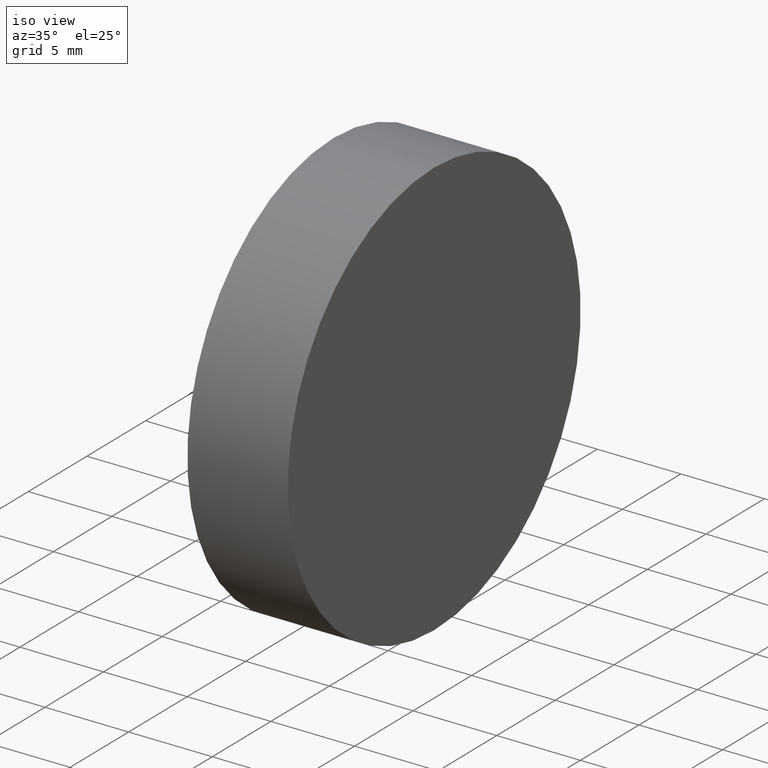
[diagram: clean part render]
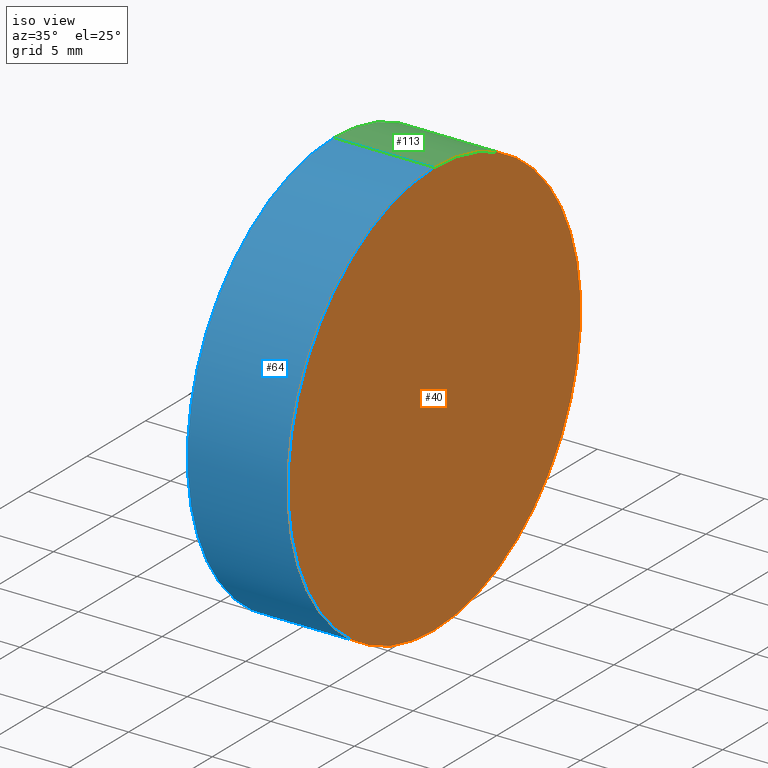
[diagram: same view with three faces highlighted in distinct colors, each labeled with its STEP entity id]
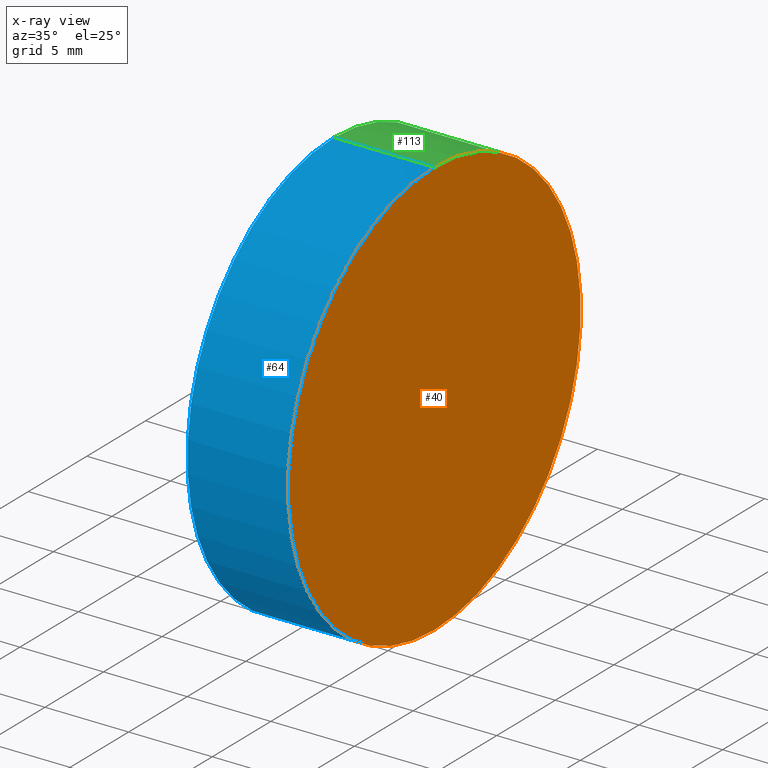
[diagram: x-ray of the same camera — body ghosted, the three highlighted faces saturated]
A machine part, iso view with three faces highlighted in distinct colors.
The next image is the same camera in x-ray (body ghosted, the three faces saturated) — at least one of them is partly hidden behind the body in this view.
Their STEP definitions:

[orange] entity #40 — the highlighted planar face has unit normal (-1, 0, -0).
#10 = AXIS2_PLACEMENT_3D ( 'NONE', #11, #46, #121 ) ;
#11 = CARTESIAN_POINT ( 'NONE',  ( 266.1571404925609800, 77.29317934901541800, 0.0000000000000000000 ) ) ;
#16 = CARTESIAN_POINT ( 'NONE',  ( 266.1571404925609800, 77.29317934901541800, -12.49999999999998400 ) ) ;
#17 = CIRCLE ( 'NONE', #55, 12.49999999999998400 ) ;
#20 = VERTEX_POINT ( 'NONE', #77 ) ;
#22 = EDGE_CURVE ( 'NONE', #124, #20, #131, .T. ) ;
#34 = CARTESIAN_POINT ( 'NONE',  ( 266.1571404925609800, 77.29317934901541800, 0.0000000000000000000 ) ) ;
#40 = ADVANCED_FACE ( 'NONE', ( #74 ), #135, .F. ) ;
#46 = DIRECTION ( 'NONE',  ( -1.000000000000000000, -0.0000000000000000000, -0.0000000000000000000 ) ) ;
#47 = DIRECTION ( 'NONE',  ( -1.000000000000000000, 0.0000000000000000000, -0.0000000000000000000 ) ) ;
#54 = ORIENTED_EDGE ( 'NONE', *, *, #75, .F. ) ;
#55 = AXIS2_PLACEMENT_3D ( 'NONE', #34, #59, #114 ) ;
#59 = DIRECTION ( 'NONE',  ( -1.000000000000000000, -0.0000000000000000000, -0.0000000000000000000 ) ) ;
#70 = DIRECTION ( 'NONE',  ( -0.0000000000000000000, 0.0000000000000000000, 1.000000000000000000 ) ) ;
#74 = FACE_OUTER_BOUND ( 'NONE', #102, .T. ) ;
#75 = EDGE_CURVE ( 'NONE', #20, #124, #17, .T. ) ;
#77 = CARTESIAN_POINT ( 'NONE',  ( 266.1571404925609800, 77.29317934901541800, 12.49999999999998400 ) ) ;
#102 = EDGE_LOOP ( 'NONE', ( #54, #139 ) ) ;
#110 = CARTESIAN_POINT ( 'NONE',  ( 266.1571404925609800, 77.29317934901540400, 0.0000000000000000000 ) ) ;
#114 = DIRECTION ( 'NONE',  ( 0.0000000000000000000, 0.0000000000000000000, 1.000000000000000000 ) ) ;
#121 = DIRECTION ( 'NONE',  ( 0.0000000000000000000, 0.0000000000000000000, 1.000000000000000000 ) ) ;
#122 = AXIS2_PLACEMENT_3D ( 'NONE', #110, #47, #70 ) ;
#124 = VERTEX_POINT ( 'NONE', #16 ) ;
#131 = CIRCLE ( 'NONE', #10, 12.49999999999998400 ) ;
#135 = PLANE ( 'NONE',  #122 ) ;
#139 = ORIENTED_EDGE ( 'NONE', *, *, #22, .F. ) ;

[blue] entity #64 — the highlighted cylindrical surface (partial cylindrical patch) has radius 12.5 mm, axis along (-1, -0, -0).
#3 = ORIENTED_EDGE ( 'NONE', *, *, #88, .F. ) ;
#5 = CARTESIAN_POINT ( 'NONE',  ( 254.0008019926160300, 77.29317934901541800, 12.49999999999998400 ) ) ;
#10 = AXIS2_PLACEMENT_3D ( 'NONE', #11, #46, #121 ) ;
#11 = CARTESIAN_POINT ( 'NONE',  ( 266.1571404925609800, 77.29317934901541800, 0.0000000000000000000 ) ) ;
#12 = VECTOR ( 'NONE', #97, 1000.000000000000000 ) ;
#16 = CARTESIAN_POINT ( 'NONE',  ( 266.1571404925609800, 77.29317934901541800, -12.49999999999998400 ) ) ;
#20 = VERTEX_POINT ( 'NONE', #77 ) ;
#21 = DIRECTION ( 'NONE',  ( 0.0000000000000000000, 0.0000000000000000000, 1.000000000000000000 ) ) ;
#22 = EDGE_CURVE ( 'NONE', #124, #20, #131, .T. ) ;
#26 = CARTESIAN_POINT ( 'NONE',  ( 254.0008019926160300, 77.29317934901541800, -12.49999999999998400 ) ) ;
#37 = VERTEX_POINT ( 'NONE', #95 ) ;
#42 = LINE ( 'NONE', #5, #92 ) ;
#44 = ORIENTED_EDGE ( 'NONE', *, *, #45, .F. ) ;
#45 = EDGE_CURVE ( 'NONE', #37, #52, #63, .T. ) ;
#46 = DIRECTION ( 'NONE',  ( -1.000000000000000000, -0.0000000000000000000, -0.0000000000000000000 ) ) ;
#48 = FACE_OUTER_BOUND ( 'NONE', #68, .T. ) ;
#50 = AXIS2_PLACEMENT_3D ( 'NONE', #56, #86, #21 ) ;
#52 = VERTEX_POINT ( 'NONE', #78 ) ;
#56 = CARTESIAN_POINT ( 'NONE',  ( 260.1571404925609800, 77.29317934901541800, 0.0000000000000000000 ) ) ;
#57 = LINE ( 'NONE', #26, #12 ) ;
#63 = CIRCLE ( 'NONE', #50, 12.49999999999998400 ) ;
#64 = ADVANCED_FACE ( 'NONE', ( #48 ), #79, .T. ) ;
#68 = EDGE_LOOP ( 'NONE', ( #3, #94, #91, #44 ) ) ;
#72 = AXIS2_PLACEMENT_3D ( 'NONE', #111, #123, #133 ) ;
#77 = CARTESIAN_POINT ( 'NONE',  ( 266.1571404925609800, 77.29317934901541800, 12.49999999999998400 ) ) ;
#78 = CARTESIAN_POINT ( 'NONE',  ( 260.1571404925609800, 77.29317934901541800, 12.49999999999998400 ) ) ;
#79 = CYLINDRICAL_SURFACE ( 'NONE', #72, 12.49999999999998400 ) ;
#84 = EDGE_CURVE ( 'NONE', #20, #52, #42, .T. ) ;
#86 = DIRECTION ( 'NONE',  ( -1.000000000000000000, -0.0000000000000000000, -0.0000000000000000000 ) ) ;
#88 = EDGE_CURVE ( 'NONE', #124, #37, #57, .T. ) ;
#91 = ORIENTED_EDGE ( 'NONE', *, *, #84, .T. ) ;
#92 = VECTOR ( 'NONE', #100, 1000.000000000000000 ) ;
#94 = ORIENTED_EDGE ( 'NONE', *, *, #22, .T. ) ;
#95 = CARTESIAN_POINT ( 'NONE',  ( 260.1571404925609800, 77.29317934901541800, -12.49999999999998400 ) ) ;
#97 = DIRECTION ( 'NONE',  ( -1.000000000000000000, -0.0000000000000000000, -0.0000000000000000000 ) ) ;
#100 = DIRECTION ( 'NONE',  ( -1.000000000000000000, -0.0000000000000000000, -0.0000000000000000000 ) ) ;
#111 = CARTESIAN_POINT ( 'NONE',  ( 254.0008019926160300, 77.29317934901541800, 0.0000000000000000000 ) ) ;
#121 = DIRECTION ( 'NONE',  ( 0.0000000000000000000, 0.0000000000000000000, 1.000000000000000000 ) ) ;
#123 = DIRECTION ( 'NONE',  ( -1.000000000000000000, -0.0000000000000000000, -0.0000000000000000000 ) ) ;
#124 = VERTEX_POINT ( 'NONE', #16 ) ;
#131 = CIRCLE ( 'NONE', #10, 12.49999999999998400 ) ;
#133 = DIRECTION ( 'NONE',  ( 0.0000000000000000000, 0.0000000000000000000, 1.000000000000000000 ) ) ;

[green] entity #113 — the highlighted cylindrical surface (partial cylindrical patch) has radius 12.5 mm, axis along (-1, -0, -0).
#5 = CARTESIAN_POINT ( 'NONE',  ( 254.0008019926160300, 77.29317934901541800, 12.49999999999998400 ) ) ;
#8 = FACE_OUTER_BOUND ( 'NONE', #67, .T. ) ;
#9 = CIRCLE ( 'NONE', #25, 12.49999999999998400 ) ;
#12 = VECTOR ( 'NONE', #97, 1000.000000000000000 ) ;
#14 = DIRECTION ( 'NONE',  ( -1.000000000000000000, -0.0000000000000000000, -0.0000000000000000000 ) ) ;
#16 = CARTESIAN_POINT ( 'NONE',  ( 266.1571404925609800, 77.29317934901541800, -12.49999999999998400 ) ) ;
#17 = CIRCLE ( 'NONE', #55, 12.49999999999998400 ) ;
#20 = VERTEX_POINT ( 'NONE', #77 ) ;
#23 = ORIENTED_EDGE ( 'NONE', *, *, #75, .T. ) ;
#25 = AXIS2_PLACEMENT_3D ( 'NONE', #71, #96, #33 ) ;
#26 = CARTESIAN_POINT ( 'NONE',  ( 254.0008019926160300, 77.29317934901541800, -12.49999999999998400 ) ) ;
#33 = DIRECTION ( 'NONE',  ( 0.0000000000000000000, 0.0000000000000000000, 1.000000000000000000 ) ) ;
#34 = CARTESIAN_POINT ( 'NONE',  ( 266.1571404925609800, 77.29317934901541800, 0.0000000000000000000 ) ) ;
#37 = VERTEX_POINT ( 'NONE', #95 ) ;
#38 = AXIS2_PLACEMENT_3D ( 'NONE', #115, #14, #49 ) ;
#41 = EDGE_CURVE ( 'NONE', #52, #37, #9, .T. ) ;
#42 = LINE ( 'NONE', #5, #92 ) ;
#49 = DIRECTION ( 'NONE',  ( 0.0000000000000000000, 0.0000000000000000000, 1.000000000000000000 ) ) ;
#52 = VERTEX_POINT ( 'NONE', #78 ) ;
#55 = AXIS2_PLACEMENT_3D ( 'NONE', #34, #59, #114 ) ;
#57 = LINE ( 'NONE', #26, #12 ) ;
#59 = DIRECTION ( 'NONE',  ( -1.000000000000000000, -0.0000000000000000000, -0.0000000000000000000 ) ) ;
#67 = EDGE_LOOP ( 'NONE', ( #23, #126, #132, #129 ) ) ;
#71 = CARTESIAN_POINT ( 'NONE',  ( 260.1571404925609800, 77.29317934901541800, 0.0000000000000000000 ) ) ;
#75 = EDGE_CURVE ( 'NONE', #20, #124, #17, .T. ) ;
#77 = CARTESIAN_POINT ( 'NONE',  ( 266.1571404925609800, 77.29317934901541800, 12.49999999999998400 ) ) ;
#78 = CARTESIAN_POINT ( 'NONE',  ( 260.1571404925609800, 77.29317934901541800, 12.49999999999998400 ) ) ;
#84 = EDGE_CURVE ( 'NONE', #20, #52, #42, .T. ) ;
#88 = EDGE_CURVE ( 'NONE', #124, #37, #57, .T. ) ;
#92 = VECTOR ( 'NONE', #100, 1000.000000000000000 ) ;
#95 = CARTESIAN_POINT ( 'NONE',  ( 260.1571404925609800, 77.29317934901541800, -12.49999999999998400 ) ) ;
#96 = DIRECTION ( 'NONE',  ( -1.000000000000000000, -0.0000000000000000000, -0.0000000000000000000 ) ) ;
#97 = DIRECTION ( 'NONE',  ( -1.000000000000000000, -0.0000000000000000000, -0.0000000000000000000 ) ) ;
#100 = DIRECTION ( 'NONE',  ( -1.000000000000000000, -0.0000000000000000000, -0.0000000000000000000 ) ) ;
#113 = ADVANCED_FACE ( 'NONE', ( #8 ), #134, .T. ) ;
#114 = DIRECTION ( 'NONE',  ( 0.0000000000000000000, 0.0000000000000000000, 1.000000000000000000 ) ) ;
#115 = CARTESIAN_POINT ( 'NONE',  ( 254.0008019926160300, 77.29317934901541800, 0.0000000000000000000 ) ) ;
#124 = VERTEX_POINT ( 'NONE', #16 ) ;
#126 = ORIENTED_EDGE ( 'NONE', *, *, #88, .T. ) ;
#129 = ORIENTED_EDGE ( 'NONE', *, *, #84, .F. ) ;
#132 = ORIENTED_EDGE ( 'NONE', *, *, #41, .F. ) ;
#134 = CYLINDRICAL_SURFACE ( 'NONE', #38, 12.49999999999998400 ) ;